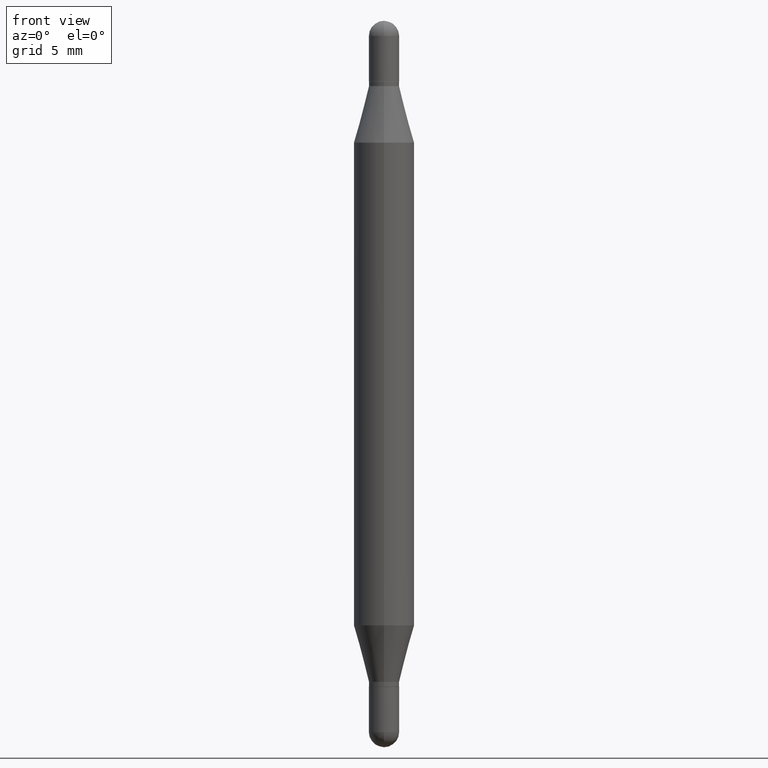
[diagram: clean part render]
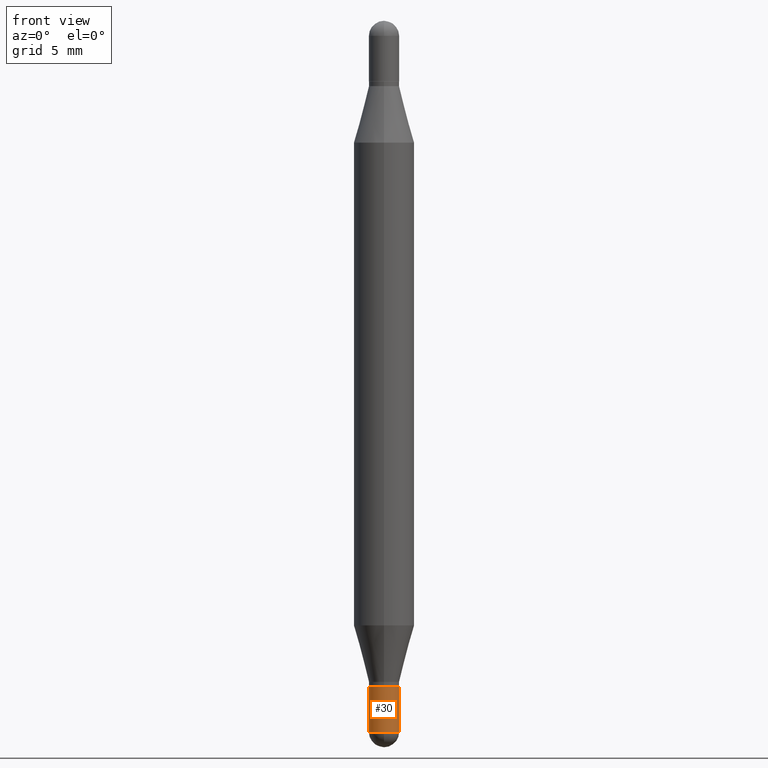
[diagram: same view with one face highlighted and labeled with its STEP entity id]
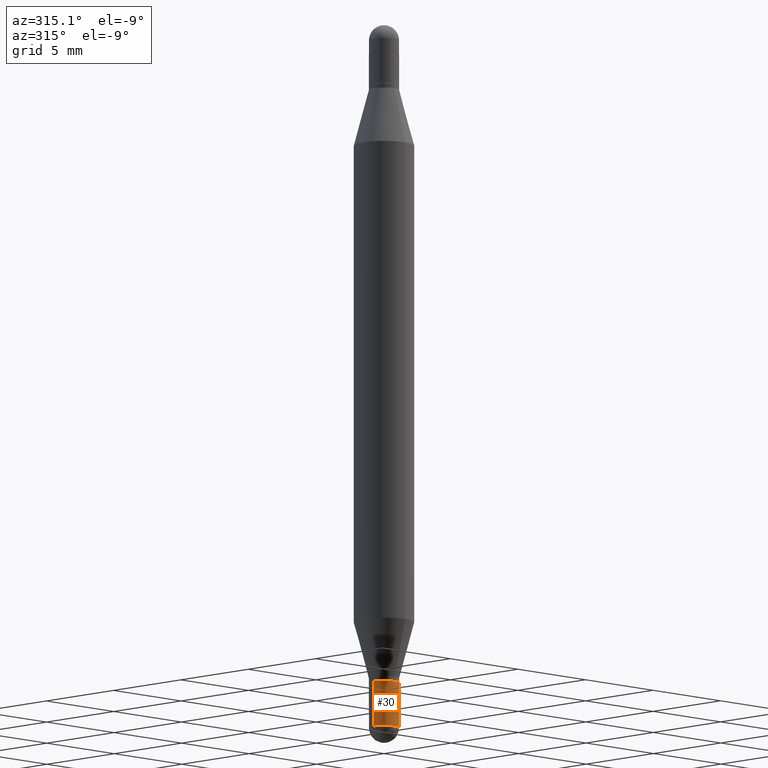
[diagram: same view with one face highlighted and labeled with its STEP entity id]
A machine part, front view. The second image highlights one B-rep face of the part: STEP entity #30.
A second angle (auxiliary view) of the same face is appended — the face is thin or edge-on in the first view.
In plain terms, the highlighted cylindrical surface (edge-blend (fillet) strip) has radius 0.7937 mm, axis along (-0, 0, 1).
Its self-contained STEP definition (entity closure, byte-faithful):
#20 = VERTEX_POINT ( 'NONE', #891 ) ;
#23 = AXIS2_PLACEMENT_3D ( 'NONE', #784, #946, #679 ) ;
#30 = ADVANCED_FACE ( 'NONE', ( #187 ), #278, .T. ) ;
#109 = EDGE_CURVE ( 'NONE', #1057, #584, #717, .T. ) ;
#116 = ORIENTED_EDGE ( 'NONE', *, *, #726, .F. ) ;
#158 = CARTESIAN_POINT ( 'NONE',  ( -0.03125000000000000000, 2.220446049250313081E-16, -1.537167215704658057E-30 ) ) ;
#159 = VERTEX_POINT ( 'NONE', #518 ) ;
#168 = CARTESIAN_POINT ( 'NONE',  ( -2.182175836776606071E-16, -0.03125000000000523193, -1.468750000000000000 ) ) ;
#187 = FACE_OUTER_BOUND ( 'NONE', #1079, .T. ) ;
#190 = LINE ( 'NONE', #1054, #391 ) ;
#191 = EDGE_CURVE ( 'NONE', #584, #159, #675, .T. ) ;
#266 = CARTESIAN_POINT ( 'NONE',  ( 3.362519608504562821E-29, -4.800786840909326507E-15, -1.375000000000000222 ) ) ;
#278 = CYLINDRICAL_SURFACE ( 'NONE', #302, 0.03125000000000000000 ) ;
#283 = DIRECTION ( 'NONE',  ( -2.445468806185136877E-29, 3.491481338843145188E-15, 1.000000000000000000 ) ) ;
#289 = AXIS2_PLACEMENT_3D ( 'NONE', #266, #940, #1062 ) ;
#300 = DIRECTION ( 'NONE',  ( -2.445468806185136877E-29, 3.491481338843145188E-15, 1.000000000000000000 ) ) ;
#302 = AXIS2_PLACEMENT_3D ( 'NONE', #870, #360, #1053 ) ;
#315 = VERTEX_POINT ( 'NONE', #361 ) ;
#360 = DIRECTION ( 'NONE',  ( -2.445468806185136597E-29, 3.491481338843145583E-15, 1.000000000000000000 ) ) ;
#361 = CARTESIAN_POINT ( 'NONE',  ( 0.03125000000000000000, -5.019004424587021553E-15, -1.375000000000000222 ) ) ;
#364 = EDGE_CURVE ( 'NONE', #159, #315, #190, .T. ) ;
#391 = VECTOR ( 'NONE', #283, 39.37007874015748143 ) ;
#447 = AXIS2_PLACEMENT_3D ( 'NONE', #851, #692, #860 ) ;
#518 = CARTESIAN_POINT ( 'NONE',  ( 0.03125000000000000694, -5.182667612345293626E-15, -1.468750000000000000 ) ) ;
#523 = ORIENTED_EDGE ( 'NONE', *, *, #191, .T. ) ;
#531 = EDGE_CURVE ( 'NONE', #1057, #20, #929, .T. ) ;
#557 = ORIENTED_EDGE ( 'NONE', *, *, #364, .T. ) ;
#576 = ORIENTED_EDGE ( 'NONE', *, *, #531, .F. ) ;
#584 = VERTEX_POINT ( 'NONE', #168 ) ;
#642 = CARTESIAN_POINT ( 'NONE',  ( -0.03125000000000000694, -4.742405423742566484E-15, -1.468750000000000000 ) ) ;
#675 = CIRCLE ( 'NONE', #447, 0.03125000000000000694 ) ;
#677 = VECTOR ( 'NONE', #300, 39.37007874015748143 ) ;
#679 = DIRECTION ( 'NONE',  ( 1.000000000000000000, -6.982962677686261189E-15, 0.000000000000000000 ) ) ;
#692 = DIRECTION ( 'NONE',  ( -2.445468806185136597E-29, 3.491481338843145583E-15, 1.000000000000000000 ) ) ;
#717 = CIRCLE ( 'NONE', #23, 0.03125000000000000694 ) ;
#726 = EDGE_CURVE ( 'NONE', #20, #315, #778, .T. ) ;
#778 = CIRCLE ( 'NONE', #289, 0.03125000000000000000 ) ;
#784 = CARTESIAN_POINT ( 'NONE',  ( 3.591782309084418816E-29, -5.128113216425869865E-15, -1.468750000000000000 ) ) ;
#851 = CARTESIAN_POINT ( 'NONE',  ( 3.591782309084418816E-29, -5.128113216425869865E-15, -1.468750000000000000 ) ) ;
#859 = ORIENTED_EDGE ( 'NONE', *, *, #109, .T. ) ;
#860 = DIRECTION ( 'NONE',  ( 1.000000000000000000, -6.982962677686261189E-15, 0.000000000000000000 ) ) ;
#870 = CARTESIAN_POINT ( 'NONE',  ( 0.000000000000000000, 0.000000000000000000, 0.000000000000000000 ) ) ;
#891 = CARTESIAN_POINT ( 'NONE',  ( -0.03125000000000000000, -4.742405423742566484E-15, -1.375000000000000222 ) ) ;
#929 = LINE ( 'NONE', #158, #677 ) ;
#940 = DIRECTION ( 'NONE',  ( -2.445468806185136597E-29, 3.491481338843145583E-15, 1.000000000000000000 ) ) ;
#946 = DIRECTION ( 'NONE',  ( -2.445468806185136597E-29, 3.491481338843145583E-15, 1.000000000000000000 ) ) ;
#1053 = DIRECTION ( 'NONE',  ( 1.000000000000000000, -6.982962677686266711E-15, 4.876176775795935793E-29 ) ) ;
#1054 = CARTESIAN_POINT ( 'NONE',  ( 0.03125000000000000000, -2.182175836776958347E-16, 1.523805242436229935E-30 ) ) ;
#1057 = VERTEX_POINT ( 'NONE', #642 ) ;
#1062 = DIRECTION ( 'NONE',  ( 1.000000000000000000, -6.982962677686262766E-15, 0.000000000000000000 ) ) ;
#1079 = EDGE_LOOP ( 'NONE', ( #576, #859, #523, #557, #116 ) ) ;